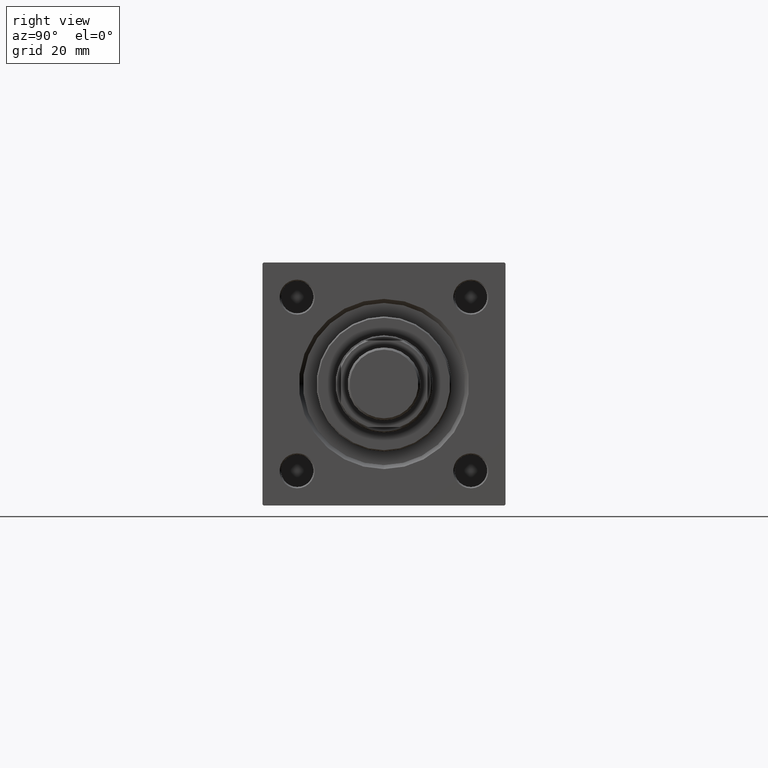
[diagram: clean part render]
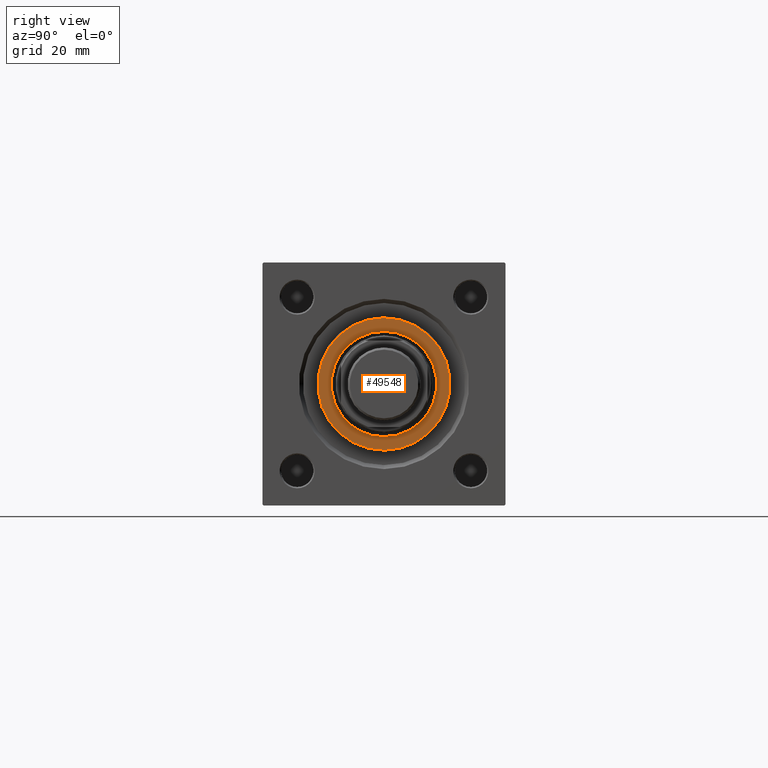
[diagram: same view with one face highlighted and labeled with its STEP entity id]
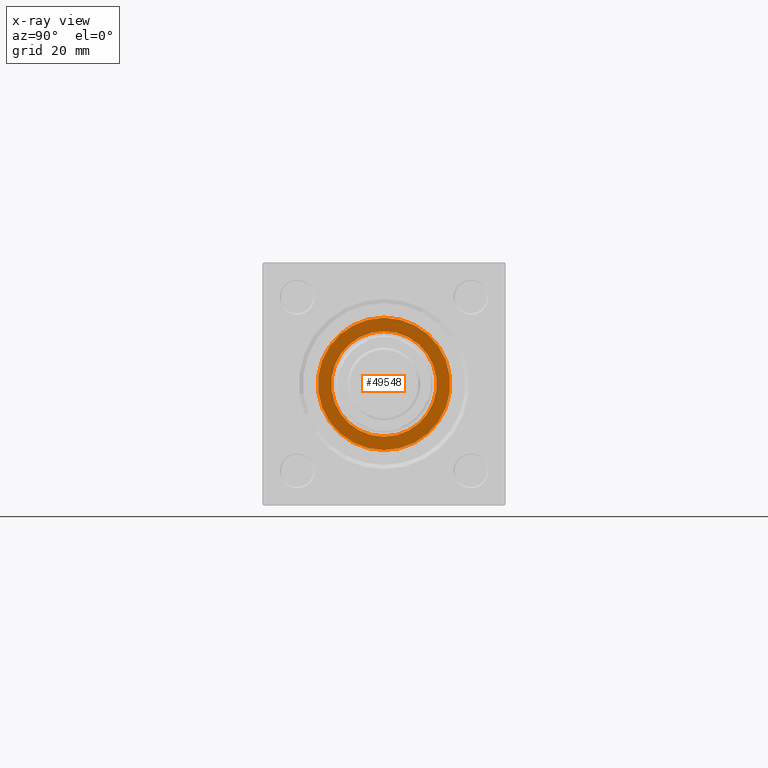
[diagram: x-ray of the same camera — body ghosted, the highlighted face saturated]
A machine part, right view. The second image highlights one B-rep face of the part: STEP entity #49548.
The next image is the same camera in x-ray: the body ghosted, the highlighted face saturated — about 0% of this face is hidden behind the body in this view.
In plain terms, the highlighted planar face has unit normal (1, 0, 0).
Its self-contained STEP definition (entity closure, byte-faithful):
#801 = EDGE_CURVE ( 'NONE', #11976, #26682, #5083, .T. ) ;
#1010 = EDGE_LOOP ( 'NONE', ( #43661, #8357 ) ) ;
#1373 = CIRCLE ( 'NONE', #41452, 19.50000000000000000 ) ;
#3525 = CARTESIAN_POINT ( 'NONE',  ( 0.000000000000000000, 0.000000000000000000, 40.70000000000000284 ) ) ;
#4533 = DIRECTION ( 'NONE',  ( 1.000000000000000000, 0.000000000000000000, 0.000000000000000000 ) ) ;
#5083 = CIRCLE ( 'NONE', #30430, 24.49999999999999645 ) ;
#8357 = ORIENTED_EDGE ( 'NONE', *, *, #41906, .F. ) ;
#11976 = VERTEX_POINT ( 'NONE', #50570 ) ;
#14350 = AXIS2_PLACEMENT_3D ( 'NONE', #15560, #20176, #4533 ) ;
#14375 = DIRECTION ( 'NONE',  ( 0.000000000000000000, 0.000000000000000000, 1.000000000000000000 ) ) ;
#14566 = FACE_OUTER_BOUND ( 'NONE', #44549, .T. ) ;
#14625 = DIRECTION ( 'NONE',  ( 1.000000000000000000, 0.000000000000000000, 0.000000000000000000 ) ) ;
#15560 = CARTESIAN_POINT ( 'NONE',  ( 0.000000000000000000, 0.000000000000000000, 40.70000000000000284 ) ) ;
#18989 = CARTESIAN_POINT ( 'NONE',  ( 24.49999999999999645, 3.031000827889698861E-15, 40.70000000000000284 ) ) ;
#19156 = DIRECTION ( 'NONE',  ( 1.000000000000000000, 0.000000000000000000, -0.000000000000000000 ) ) ;
#20176 = DIRECTION ( 'NONE',  ( 0.000000000000000000, 0.000000000000000000, 1.000000000000000000 ) ) ;
#20498 = VERTEX_POINT ( 'NONE', #33621 ) ;
#21156 = DIRECTION ( 'NONE',  ( 0.000000000000000000, 0.000000000000000000, 1.000000000000000000 ) ) ;
#21667 = CIRCLE ( 'NONE', #44576, 19.50000000000000000 ) ;
#22322 = CARTESIAN_POINT ( 'NONE',  ( 0.000000000000000000, 0.000000000000000000, 40.70000000000000284 ) ) ;
#23568 = AXIS2_PLACEMENT_3D ( 'NONE', #3525, #43506, #19156 ) ;
#24076 = DIRECTION ( 'NONE',  ( 1.000000000000000000, 0.000000000000000000, 0.000000000000000000 ) ) ;
#25006 = CARTESIAN_POINT ( 'NONE',  ( 0.000000000000000000, 0.000000000000000000, 40.70000000000000284 ) ) ;
#26682 = VERTEX_POINT ( 'NONE', #18989 ) ;
#27399 = DIRECTION ( 'NONE',  ( 0.000000000000000000, 0.000000000000000000, 1.000000000000000000 ) ) ;
#30124 = VERTEX_POINT ( 'NONE', #38357 ) ;
#30430 = AXIS2_PLACEMENT_3D ( 'NONE', #25006, #21156, #32688 ) ;
#31205 = PLANE ( 'NONE',  #23568 ) ;
#32688 = DIRECTION ( 'NONE',  ( 1.000000000000000000, 0.000000000000000000, 0.000000000000000000 ) ) ;
#33621 = CARTESIAN_POINT ( 'NONE',  ( 19.50000000000000000, 0.000000000000000000, 40.70000000000000284 ) ) ;
#34061 = FACE_BOUND ( 'NONE', #1010, .T. ) ;
#35150 = ORIENTED_EDGE ( 'NONE', *, *, #801, .T. ) ;
#35356 = CARTESIAN_POINT ( 'NONE',  ( 0.000000000000000000, 0.000000000000000000, 40.70000000000000284 ) ) ;
#38357 = CARTESIAN_POINT ( 'NONE',  ( -19.50000000000000000, 2.388061258337338939E-15, 40.70000000000000284 ) ) ;
#40087 = EDGE_CURVE ( 'NONE', #26682, #11976, #45446, .T. ) ;
#41452 = AXIS2_PLACEMENT_3D ( 'NONE', #35356, #27399, #24076 ) ;
#41906 = EDGE_CURVE ( 'NONE', #30124, #20498, #21667, .T. ) ;
#43506 = DIRECTION ( 'NONE',  ( 0.000000000000000000, 0.000000000000000000, 1.000000000000000000 ) ) ;
#43661 = ORIENTED_EDGE ( 'NONE', *, *, #46694, .F. ) ;
#44549 = EDGE_LOOP ( 'NONE', ( #35150, #48982 ) ) ;
#44576 = AXIS2_PLACEMENT_3D ( 'NONE', #22322, #14375, #14625 ) ;
#45446 = CIRCLE ( 'NONE', #14350, 24.49999999999999645 ) ;
#46694 = EDGE_CURVE ( 'NONE', #20498, #30124, #1373, .T. ) ;
#48982 = ORIENTED_EDGE ( 'NONE', *, *, #40087, .T. ) ;
#49548 = ADVANCED_FACE ( 'NONE', ( #34061, #14566 ), #31205, .T. ) ;
#50570 = CARTESIAN_POINT ( 'NONE',  ( -24.49999999999999645, 0.000000000000000000, 40.70000000000000284 ) ) ;